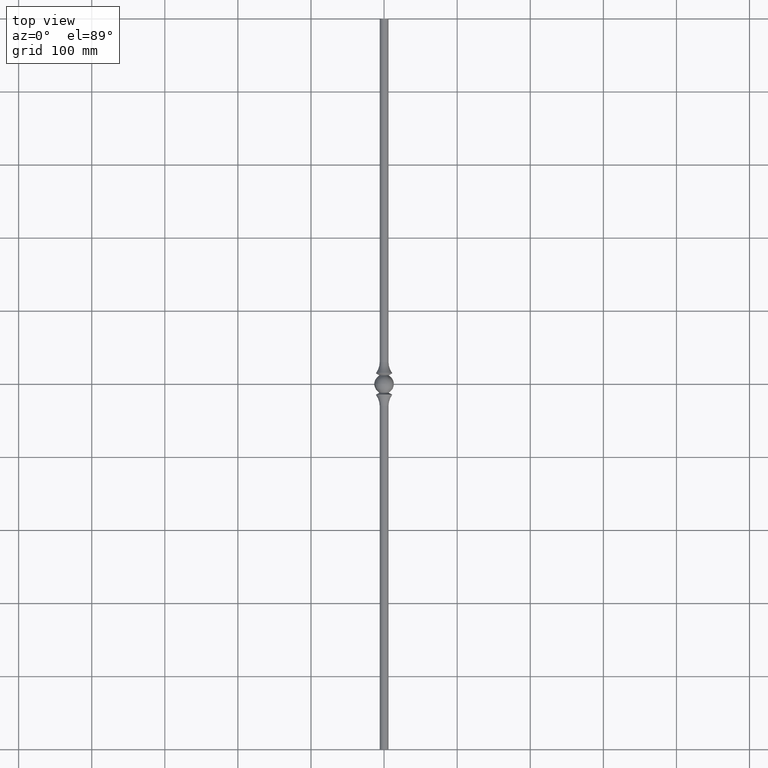
[diagram: clean part render]
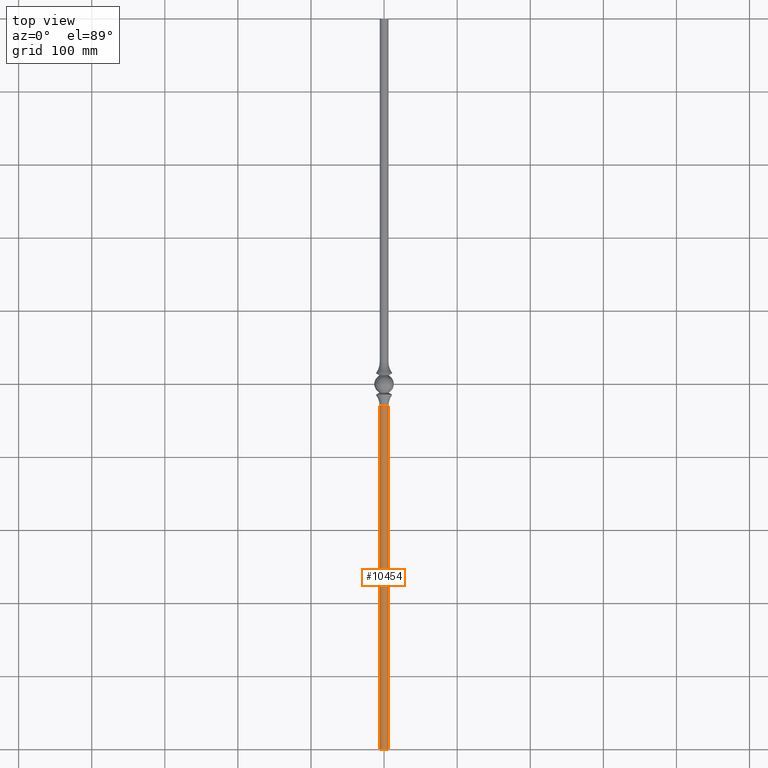
[diagram: same view with one face highlighted and labeled with its STEP entity id]
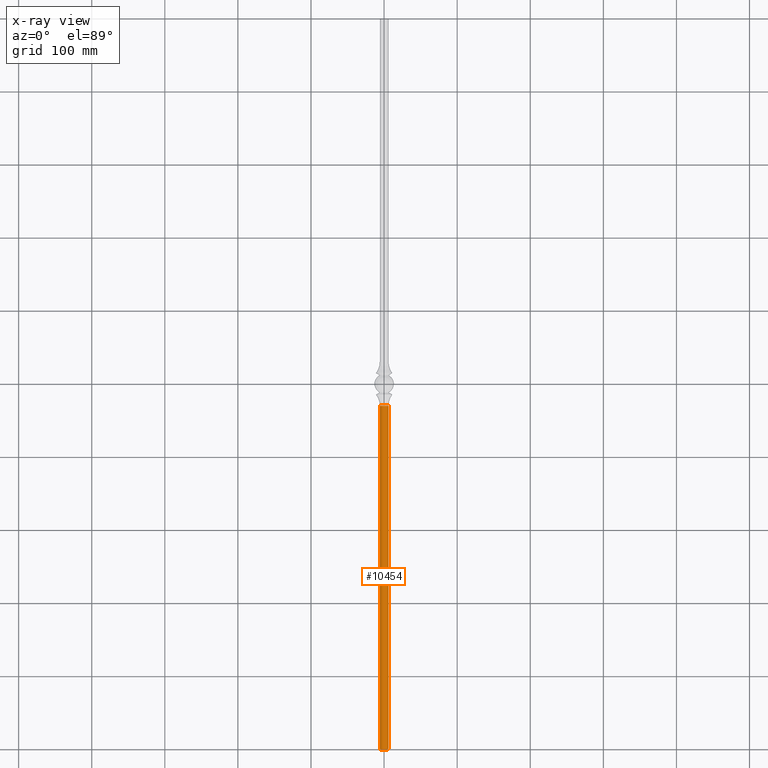
[diagram: x-ray of the same camera — body ghosted, the highlighted face saturated]
A machine part, top view. The second image highlights one B-rep face of the part: STEP entity #10454.
The next image is the same camera in x-ray: the body ghosted, the highlighted face saturated — about 0% of this face is hidden behind the body in this view.
In plain terms, the highlighted cylindrical surface (bore or boss wall) has radius 6 mm, axis along (-0, 1, -0).
Its self-contained STEP definition (entity closure, byte-faithful):
#610 = EDGE_LOOP ( 'NONE', ( #5626 ) ) ;
#781 = CYLINDRICAL_SURFACE ( 'NONE', #3130, 6.000000000000002665 ) ;
#888 = DIRECTION ( 'NONE',  ( 1.000000000000000000, 0.000000000000000000, 0.000000000000000000 ) ) ;
#918 = CARTESIAN_POINT ( 'NONE',  ( 5.718543338857340876E-14, -500.0000000000000000, 0.000000000000000000 ) ) ;
#1960 = ORIENTED_EDGE ( 'NONE', *, *, #6652, .T. ) ;
#2213 = VERTEX_POINT ( 'NONE', #3904 ) ;
#2653 = DIRECTION ( 'NONE',  ( 1.078970441293838088E-16, -1.000000000000000000, 0.000000000000000000 ) ) ;
#2973 = AXIS2_PLACEMENT_3D ( 'NONE', #918, #9077, #888 ) ;
#3130 = AXIS2_PLACEMENT_3D ( 'NONE', #10626, #6615, #5713 ) ;
#3871 = VERTEX_POINT ( 'NONE', #7108 ) ;
#3904 = CARTESIAN_POINT ( 'NONE',  ( 6.000000000000060396, -500.0000000000000000, 0.000000000000000000 ) ) ;
#5074 = CARTESIAN_POINT ( 'NONE',  ( 6.473822647763028181E-15, -30.00000000000000000, 0.000000000000000000 ) ) ;
#5626 = ORIENTED_EDGE ( 'NONE', *, *, #8482, .F. ) ;
#5713 = DIRECTION ( 'NONE',  ( -1.000000000000000000, 0.000000000000000000, 0.000000000000000000 ) ) ;
#6615 = DIRECTION ( 'NONE',  ( -1.078970441293838211E-16, 1.000000000000000000, -0.000000000000000000 ) ) ;
#6652 = EDGE_CURVE ( 'NONE', #3871, #3871, #10324, .T. ) ;
#7108 = CARTESIAN_POINT ( 'NONE',  ( 6.000000000000008882, -30.00000000000000000, 0.000000000000000000 ) ) ;
#7579 = AXIS2_PLACEMENT_3D ( 'NONE', #5074, #2653, #9107 ) ;
#8482 = EDGE_CURVE ( 'NONE', #2213, #2213, #10442, .T. ) ;
#8831 = EDGE_LOOP ( 'NONE', ( #1960 ) ) ;
#8876 = FACE_OUTER_BOUND ( 'NONE', #610, .T. ) ;
#9077 = DIRECTION ( 'NONE',  ( 1.078970441293838088E-16, -1.000000000000000000, 0.000000000000000000 ) ) ;
#9107 = DIRECTION ( 'NONE',  ( 1.000000000000000000, 0.000000000000000000, 0.000000000000000000 ) ) ;
#10324 = CIRCLE ( 'NONE', #7579, 6.000000000000002665 ) ;
#10418 = FACE_OUTER_BOUND ( 'NONE', #8831, .T. ) ;
#10442 = CIRCLE ( 'NONE', #2973, 6.000000000000002665 ) ;
#10454 = ADVANCED_FACE ( 'NONE', ( #8876, #10418 ), #781, .T. ) ;
#10626 = CARTESIAN_POINT ( 'NONE',  ( 5.718543338857340876E-14, -500.0000000000000000, 0.000000000000000000 ) ) ;